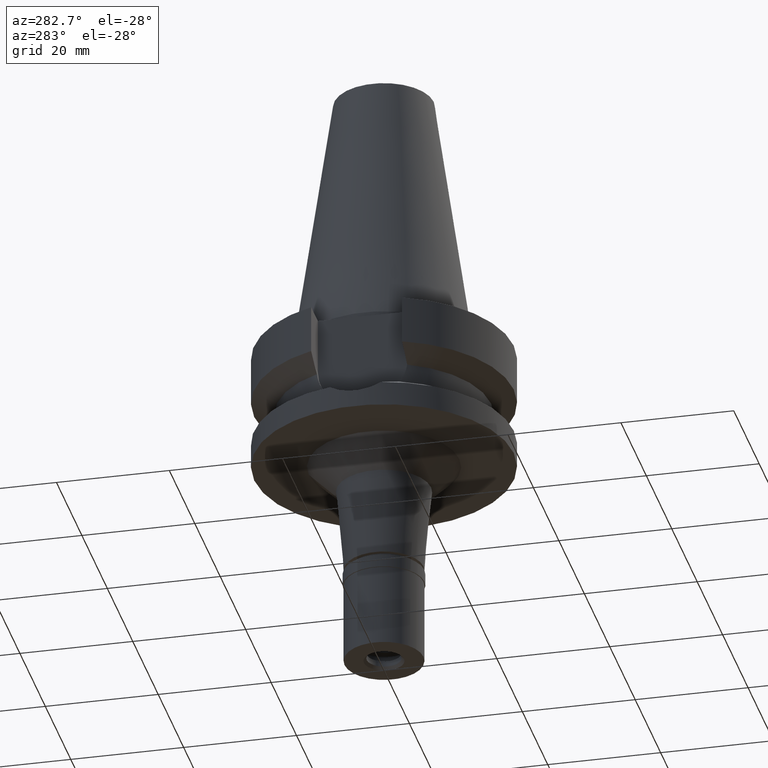
[diagram: clean part render]
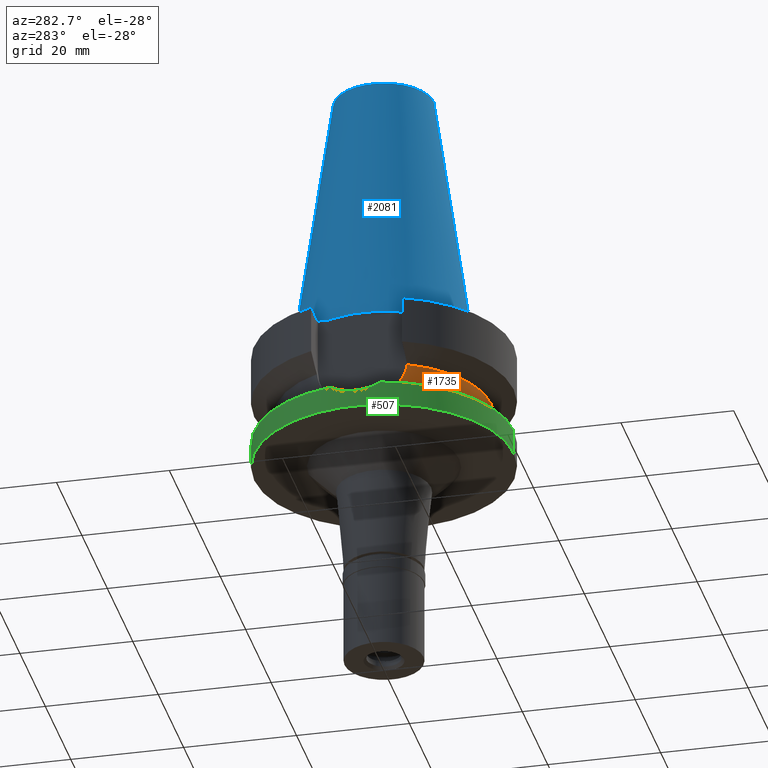
[diagram: same view with three faces highlighted in distinct colors, each labeled with its STEP entity id]
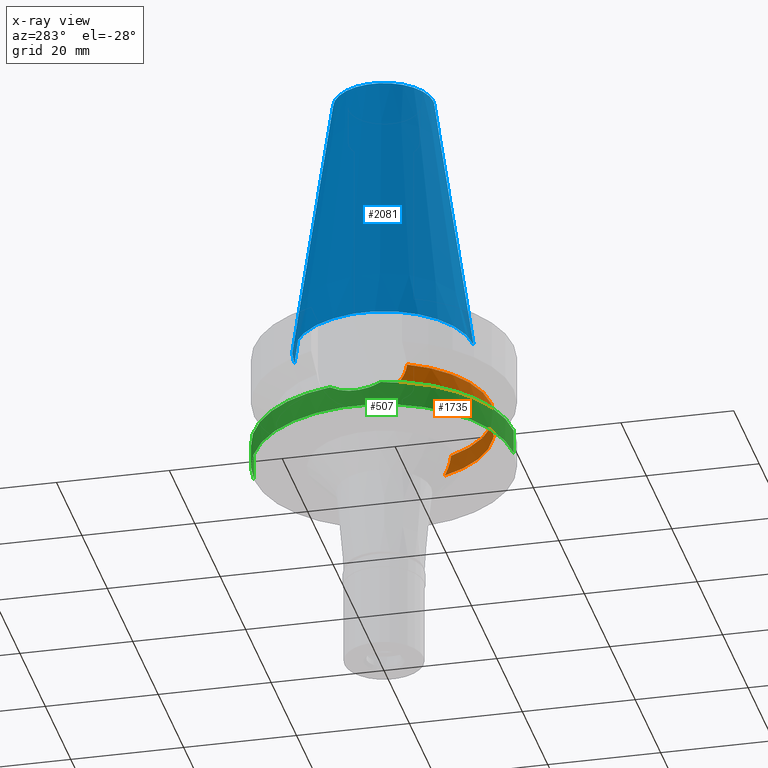
[diagram: x-ray of the same camera — body ghosted, the three highlighted faces saturated]
A machine part, auxiliary view with three faces highlighted in distinct colors.
The next image is the same camera in x-ray (body ghosted, the three faces saturated) — at least one of them is partly hidden behind the body in this view.
Their STEP definitions:

[orange] entity #1735 — the highlighted cylindrical surface (partial cylindrical patch) has radius 19 mm, axis along (0, 0, -1).
#86 = CARTESIAN_POINT ( 'NONE',  ( 17.32020187249955256, -7.811452264125294143, -12.90108126309827874 ) ) ;
#97 = CARTESIAN_POINT ( 'NONE',  ( 17.61322740984528323, -7.137115852225535129, -14.73814199246520396 ) ) ;
#113 = CARTESIAN_POINT ( 'NONE',  ( -17.45719485030821616, -7.500152504368278628, -13.87559139675905229 ) ) ;
#149 = CARTESIAN_POINT ( 'NONE',  ( -17.32791110613037233, -7.797407457914789397, -13.04850003617055876 ) ) ;
#301 = CARTESIAN_POINT ( 'NONE',  ( 0.0000000000000000000, 1.022848384030000006E-14, -15.32339055352999857 ) ) ;
#358 = ORIENTED_EDGE ( 'NONE', *, *, #1845, .T. ) ;
#400 = B_SPLINE_CURVE_WITH_KNOTS ( 'NONE', 3,
 ( #1255, #1239, #1941, #2853, #793, #2194, #113, #1719, #1033, #2871, #1740, #1503, #149, #1289, #1306 ),
 .UNSPECIFIED., .F., .F.,
 ( 4, 2, 2, 1, 1, 1, 2, 2, 4 ),
 ( 0.0000000000000000000, 0.2500000000000255906, 0.3750000000000384137, 0.4375000000000441314, 0.4687500000000467404, 0.4843750000000480727, 0.4921875000000485167, 0.5000000000000488498, 1.000000000000000000 ),
 .UNSPECIFIED. ) ;
#440 = CARTESIAN_POINT ( 'NONE',  ( -17.75736593456000278, -6.758398853743999624, -15.32339055352999857 ) ) ;
#538 = CARTESIAN_POINT ( 'NONE',  ( 17.75736593456000278, -6.758398853743999624, -15.32339055352999857 ) ) ;
#632 = EDGE_CURVE ( 'NONE', #827, #940, #1716, .T. ) ;
#775 = VERTEX_POINT ( 'NONE', #1087 ) ;
#778 = CARTESIAN_POINT ( 'NONE',  ( 17.27395772733963142, -7.913379800517086338, -12.45762674838754691 ) ) ;
#792 = CARTESIAN_POINT ( 'NONE',  ( 17.40050758145642718, -7.630565565486477020, -13.51508960620993882 ) ) ;
#793 = CARTESIAN_POINT ( 'NONE',  ( -17.51072787951258647, -7.374839633770184477, -14.18046796375015894 ) ) ;
#827 = VERTEX_POINT ( 'NONE', #1745 ) ;
#940 = VERTEX_POINT ( 'NONE', #2480 ) ;
#981 = AXIS2_PLACEMENT_3D ( 'NONE', #301, #1958, #2210 ) ;
#999 = CARTESIAN_POINT ( 'NONE',  ( 17.33753429471982344, -7.772924035376696850, -13.04956639087422232 ) ) ;
#1016 = CARTESIAN_POINT ( 'NONE',  ( 17.23531135313000107, -7.996501749111999402, -11.87660739354000050 ) ) ;
#1033 = CARTESIAN_POINT ( 'NONE',  ( -17.42911851123985301, -7.564954524495926869, -13.70217975917531561 ) ) ;
#1087 = CARTESIAN_POINT ( 'NONE',  ( 17.75736593456000278, -6.758398853743999624, -15.32339055352999857 ) ) ;
#1101 = DIRECTION ( 'NONE',  ( 0.0000000000000000000, -1.000000000000000000, 0.0000000000000000000 ) ) ;
#1211 = CARTESIAN_POINT ( 'NONE',  ( 0.0000000000000000000, 1.881302412850000052E-14, 53.62000000000000455 ) ) ;
#1239 = CARTESIAN_POINT ( 'NONE',  ( -17.68527465925047437, -6.947815190968204213, -15.03067689333788159 ) ) ;
#1255 = CARTESIAN_POINT ( 'NONE',  ( -17.75736593456000278, -6.758398853743999624, -15.32339055352999857 ) ) ;
#1268 = CARTESIAN_POINT ( 'NONE',  ( 17.36640948880069146, -7.707982828137934561, -13.27282317309930271 ) ) ;
#1289 = CARTESIAN_POINT ( 'NONE',  ( -17.26628505277651371, -7.929743581424994581, -12.45264543981650007 ) ) ;
#1296 = ORIENTED_EDGE ( 'NONE', *, *, #632, .T. ) ;
#1306 = CARTESIAN_POINT ( 'NONE',  ( -17.23531622822000386, -7.996491147957000223, -11.87660607717000083 ) ) ;
#1422 = ORIENTED_EDGE ( 'NONE', *, *, #1863, .F. ) ;
#1471 = CARTESIAN_POINT ( 'NONE',  ( 17.41740973184815644, -7.591861673416115508, -13.62698225825054799 ) ) ;
#1479 = VERTEX_POINT ( 'NONE', #440 ) ;
#1503 = CARTESIAN_POINT ( 'NONE',  ( -17.42163631456517336, -7.582155995879247712, -13.65434988440541098 ) ) ;
#1607 = AXIS2_PLACEMENT_3D ( 'NONE', #1211, #2152, #1101 ) ;
#1630 = B_SPLINE_CURVE_WITH_KNOTS ( 'NONE', 3,
 ( #1016, #2610, #778, #86, #999, #1268, #1928, #792, #2209, #2842, #1471, #1699, #1717, #97, #538 ),
 .UNSPECIFIED., .F., .F.,
 ( 4, 2, 2, 1, 1, 1, 2, 2, 4 ),
 ( 0.0000000000000000000, 0.2499999999999958922, 0.3749999999999936717, 0.4374999999999927836, 0.4687499999999922839, 0.4843749999999920064, 0.4921874999999920064, 0.4999999999999920064, 1.000000000000000000 ),
 .UNSPECIFIED. ) ;
#1637 = CARTESIAN_POINT ( 'NONE',  ( 0.0000000000000000000, 1.093341284896999988E-14, -11.87660944646999894 ) ) ;
#1699 = CARTESIAN_POINT ( 'NONE',  ( 17.41902886904345138, -7.588145056447753056, -13.63749496349907453 ) ) ;
#1716 = CIRCLE ( 'NONE', #2911, 19.00000000000000000 ) ;
#1717 = CARTESIAN_POINT ( 'NONE',  ( 17.50086807624851204, -7.400179108504425507, -14.16641331453757147 ) ) ;
#1719 = CARTESIAN_POINT ( 'NONE',  ( -17.43825996256373045, -7.543902337135691027, -13.75966030972775123 ) ) ;
#1724 = FACE_OUTER_BOUND ( 'NONE', #2284, .T. ) ;
#1735 = ADVANCED_FACE ( 'NONE', ( #1724 ), #1984, .T. ) ;
#1740 = CARTESIAN_POINT ( 'NONE',  ( -17.42272085251618208, -7.579664040962679650, -13.66132223661188050 ) ) ;
#1745 = CARTESIAN_POINT ( 'NONE',  ( 17.23531135313000107, -7.996501749111999402, -11.87660739354000050 ) ) ;
#1845 = EDGE_CURVE ( 'NONE', #1479, #775, #2292, .T. ) ;
#1863 = EDGE_CURVE ( 'NONE', #1479, #940, #400, .T. ) ;
#1928 = CARTESIAN_POINT ( 'NONE',  ( 17.38156622602872403, -7.673725376854040547, -13.38458314363614576 ) ) ;
#1941 = CARTESIAN_POINT ( 'NONE',  ( -17.62113139273918350, -7.108367418567802076, -14.74095000871269079 ) ) ;
#1958 = DIRECTION ( 'NONE',  ( 0.0000000000000000000, 0.0000000000000000000, 1.000000000000000000 ) ) ;
#1984 = CYLINDRICAL_SURFACE ( 'NONE', #1607, 19.00000000000000000 ) ;
#2152 = DIRECTION ( 'NONE',  ( 0.0000000000000000000, 0.0000000000000000000, -1.000000000000000000 ) ) ;
#2194 = CARTESIAN_POINT ( 'NONE',  ( -17.47454244282645419, -7.459747681763411187, -13.97656327318397373 ) ) ;
#2209 = CARTESIAN_POINT ( 'NONE',  ( 17.41029288300236288, -7.608179589561235190, -13.58035844461900865 ) ) ;
#2210 = DIRECTION ( 'NONE',  ( 0.0000000000000000000, -1.000000000000000000, 0.0000000000000000000 ) ) ;
#2253 = EDGE_CURVE ( 'NONE', #827, #775, #1630, .T. ) ;
#2284 = EDGE_LOOP ( 'NONE', ( #1422, #358, #2636, #1296 ) ) ;
#2292 = CIRCLE ( 'NONE', #981, 19.00000000000000000 ) ;
#2480 = CARTESIAN_POINT ( 'NONE',  ( -17.23531622822000386, -7.996491147957000223, -11.87660607717000083 ) ) ;
#2579 = DIRECTION ( 'NONE',  ( 0.0000000000000000000, 0.0000000000000000000, -1.000000000000000000 ) ) ;
#2610 = CARTESIAN_POINT ( 'NONE',  ( 17.25079912590087972, -7.963111191504665065, -12.16468723347666092 ) ) ;
#2636 = ORIENTED_EDGE ( 'NONE', *, *, #2253, .F. ) ;
#2785 = DIRECTION ( 'NONE',  ( 0.0000000000000000000, -1.000000000000000000, 0.0000000000000000000 ) ) ;
#2842 = CARTESIAN_POINT ( 'NONE',  ( 17.41455400305749990, -7.598412036632487876, -13.60833259785740879 ) ) ;
#2853 = CARTESIAN_POINT ( 'NONE',  ( -17.53683850616956974, -7.312769253788782287, -14.31902481028560814 ) ) ;
#2871 = CARTESIAN_POINT ( 'NONE',  ( -17.42527060193284427, -7.573803216175218012, -13.67765102006518774 ) ) ;
#2911 = AXIS2_PLACEMENT_3D ( 'NONE', #1637, #2579, #2785 ) ;

[blue] entity #2081 — the highlighted conical surface has half-angle 8.297 deg.
#198 = LINE ( 'NONE', #898, #2801 ) ;
#299 = CARTESIAN_POINT ( 'NONE',  ( 0.0000000000000000000, 8.816791732783000768, 48.39999999999999858 ) ) ;
#318 = CARTESIAN_POINT ( 'NONE',  ( 0.0000000000000000000, -15.87500000000000000, -1.598721155459999993E-13 ) ) ;
#341 = AXIS2_PLACEMENT_3D ( 'NONE', #2330, #466, #1390 ) ;
#342 = VERTEX_POINT ( 'NONE', #1931 ) ;
#466 = DIRECTION ( 'NONE',  ( 0.0000000000000000000, 0.0000000000000000000, -1.000000000000000000 ) ) ;
#594 = AXIS2_PLACEMENT_3D ( 'NONE', #2199, #2877, #2435 ) ;
#703 = EDGE_CURVE ( 'NONE', #819, #342, #1864, .T. ) ;
#734 = ORIENTED_EDGE ( 'NONE', *, *, #2814, .F. ) ;
#771 = ORIENTED_EDGE ( 'NONE', *, *, #1994, .F. ) ;
#819 = VERTEX_POINT ( 'NONE', #1044 ) ;
#898 = CARTESIAN_POINT ( 'NONE',  ( 0.0000000000000000000, -8.816791732783000768, 48.39999999999999858 ) ) ;
#1020 = CONICAL_SURFACE ( 'NONE', #341, 12.34589586639000025, 0.1448099680379422438 ) ;
#1044 = CARTESIAN_POINT ( 'NONE',  ( 0.0000000000000000000, -8.816791732783000768, 48.39999999999999858 ) ) ;
#1152 = FACE_OUTER_BOUND ( 'NONE', #1768, .T. ) ;
#1167 = VERTEX_POINT ( 'NONE', #1750 ) ;
#1193 = DIRECTION ( 'NONE',  ( 0.0000000000000000000, 0.1443043893539925626, -0.9895333461855498891 ) ) ;
#1266 = ORIENTED_EDGE ( 'NONE', *, *, #2018, .T. ) ;
#1343 = DIRECTION ( 'NONE',  ( 0.0000000000000000000, 0.0000000000000000000, -1.000000000000000000 ) ) ;
#1384 = DIRECTION ( 'NONE',  ( 0.0000000000000000000, -1.000000000000000000, 0.0000000000000000000 ) ) ;
#1390 = DIRECTION ( 'NONE',  ( 0.0000000000000000000, -1.000000000000000000, 0.0000000000000000000 ) ) ;
#1750 = CARTESIAN_POINT ( 'NONE',  ( 0.0000000000000000000, 15.87500000000000000, -1.598721155459999993E-13 ) ) ;
#1768 = EDGE_LOOP ( 'NONE', ( #734, #771, #2600, #1266 ) ) ;
#1853 = VERTEX_POINT ( 'NONE', #318 ) ;
#1864 = CIRCLE ( 'NONE', #594, 8.816791732783000768 ) ;
#1931 = CARTESIAN_POINT ( 'NONE',  ( 0.0000000000000000000, 8.816791732783000768, 48.39999999999999858 ) ) ;
#1937 = VECTOR ( 'NONE', #1193, 1000.000000000000114 ) ;
#1994 = EDGE_CURVE ( 'NONE', #819, #1853, #198, .T. ) ;
#2018 = EDGE_CURVE ( 'NONE', #342, #1167, #2373, .T. ) ;
#2079 = DIRECTION ( 'NONE',  ( 0.0000000000000000000, -0.1443043893539925626, -0.9895333461855498891 ) ) ;
#2081 = ADVANCED_FACE ( 'NONE', ( #1152 ), #1020, .T. ) ;
#2171 = AXIS2_PLACEMENT_3D ( 'NONE', #2274, #1343, #1384 ) ;
#2199 = CARTESIAN_POINT ( 'NONE',  ( 0.0000000000000000000, 1.521011324540999938E-14, 48.39999999999999858 ) ) ;
#2274 = CARTESIAN_POINT ( 'NONE',  ( 0.0000000000000000000, 1.521011324540999938E-14, -3.694822225953000089E-13 ) ) ;
#2330 = CARTESIAN_POINT ( 'NONE',  ( 0.0000000000000000000, 1.521011324540999938E-14, 24.19999999999999929 ) ) ;
#2373 = LINE ( 'NONE', #299, #1937 ) ;
#2435 = DIRECTION ( 'NONE',  ( 0.0000000000000000000, -1.000000000000000000, 0.0000000000000000000 ) ) ;
#2600 = ORIENTED_EDGE ( 'NONE', *, *, #703, .T. ) ;
#2801 = VECTOR ( 'NONE', #2079, 1000.000000000000114 ) ;
#2814 = EDGE_CURVE ( 'NONE', #1853, #1167, #2825, .T. ) ;
#2825 = CIRCLE ( 'NONE', #2171, 15.87500000000000000 ) ;
#2877 = DIRECTION ( 'NONE',  ( 0.0000000000000000000, 0.0000000000000000000, -1.000000000000000000 ) ) ;

[green] entity #507 — the highlighted cylindrical surface (partial cylindrical patch) has radius 23 mm, axis along (0, 0, -1).
#100 = EDGE_CURVE ( 'NONE', #922, #2237, #2385, .T. ) ;
#103 = ORIENTED_EDGE ( 'NONE', *, *, #2768, .T. ) ;
#114 = CARTESIAN_POINT ( 'NONE',  ( -22.99958106116201506, -0.4076252345886244854, -18.99876958054451848 ) ) ;
#116 = AXIS2_PLACEMENT_3D ( 'NONE', #2440, #2240, #2639 ) ;
#154 = CARTESIAN_POINT ( 'NONE',  ( -22.69605003539111721, 3.742246043853503679, -18.08863916510864200 ) ) ;
#245 = LINE ( 'NONE', #716, #2690 ) ;
#289 = VERTEX_POINT ( 'NONE', #978 ) ;
#302 = CARTESIAN_POINT ( 'NONE',  ( -22.89669828391553708, -2.179393510332613193, -18.69965599748531915 ) ) ;
#406 = ORIENTED_EDGE ( 'NONE', *, *, #100, .T. ) ;
#459 = CARTESIAN_POINT ( 'NONE',  ( 0.0000000000000000000, 23.00000000000000000, -17.63279163029000074 ) ) ;
#473 = CARTESIAN_POINT ( 'NONE',  ( -22.95216769459107198, 1.531412477254726623, -18.86284795593726216 ) ) ;
#507 = ADVANCED_FACE ( 'NONE', ( #2661 ), #2446, .T. ) ;
#512 = CARTESIAN_POINT ( 'NONE',  ( -22.81090950432876241, -3.020660139733617466, -18.44495556377373191 ) ) ;
#525 = CARTESIAN_POINT ( 'NONE',  ( -22.88222545004057906, -2.325754591110686054, -18.65674056899095135 ) ) ;
#531 = DIRECTION ( 'NONE',  ( 0.0000000000000000000, 0.0000000000000000000, 1.000000000000000000 ) ) ;
#540 = DIRECTION ( 'NONE',  ( 0.0000000000000000000, -1.000000000000000000, 0.0000000000000000000 ) ) ;
#568 = CARTESIAN_POINT ( 'NONE',  ( -22.88481372749445342, -2.300171923785075734, -18.66442433885200103 ) ) ;
#617 = CARTESIAN_POINT ( 'NONE',  ( 0.0000000000000000000, -23.00000000000000000, -22.00000000000000000 ) ) ;
#625 = ORIENTED_EDGE ( 'NONE', *, *, #1432, .T. ) ;
#642 = CARTESIAN_POINT ( 'NONE',  ( -22.86794343888607628, 2.462635580219702192, -18.61430130014867146 ) ) ;
#668 = LINE ( 'NONE', #882, #1219 ) ;
#716 = CARTESIAN_POINT ( 'NONE',  ( 0.0000000000000000000, -23.00000000000000000, -17.63279163029000074 ) ) ;
#765 = CIRCLE ( 'NONE', #1585, 23.00000000000000000 ) ;
#794 = CARTESIAN_POINT ( 'NONE',  ( -22.92452651903381877, -1.864440089677216195, -18.78174785949467918 ) ) ;
#815 = CARTESIAN_POINT ( 'NONE',  ( -23.00039156857204148, 0.3574856676471701022, -19.00115234547198639 ) ) ;
#816 = CARTESIAN_POINT ( 'NONE',  ( 0.0000000000000000000, 1.881302412850000052E-14, 53.62000000000000455 ) ) ;
#854 = CARTESIAN_POINT ( 'NONE',  ( -22.88130279756130392, 2.334968719027199935, -18.65396397036791853 ) ) ;
#882 = CARTESIAN_POINT ( 'NONE',  ( 0.0000000000000000000, 23.00000000000000000, -17.63279163029000074 ) ) ;
#922 = VERTEX_POINT ( 'NONE', #1944 ) ;
#927 = DIRECTION ( 'NONE',  ( 0.0000000000000000000, -2.603192430893000129E-14, -1.000000000000000000 ) ) ;
#978 = CARTESIAN_POINT ( 'NONE',  ( 0.0000000000000000000, 23.00000000000000000, -22.00000000000000000 ) ) ;
#1002 = CARTESIAN_POINT ( 'NONE',  ( -22.94689091153290050, -1.573058889710351904, -18.84731797892701266 ) ) ;
#1034 = CARTESIAN_POINT ( 'NONE',  ( -22.91242513727510755, -2.010000392866369445, -18.74615227865814759 ) ) ;
#1073 = CARTESIAN_POINT ( 'NONE',  ( -22.77748393016982220, 3.194066890172995610, -18.34195206604390194 ) ) ;
#1084 = CARTESIAN_POINT ( 'NONE',  ( -22.55786346208000026, 4.488072640470000430, -17.63279163029000074 ) ) ;
#1207 = CARTESIAN_POINT ( 'NONE',  ( -22.70350920476323964, -3.756030839835060142, -18.12442102094972185 ) ) ;
#1219 = VECTOR ( 'NONE', #927, 1000.000000000000000 ) ;
#1223 = CARTESIAN_POINT ( 'NONE',  ( -22.88961350933834993, -2.251877145769033195, -18.67865985014247698 ) ) ;
#1258 = EDGE_CURVE ( 'NONE', #922, #2467, #245, .T. ) ;
#1432 = EDGE_CURVE ( 'NONE', #2899, #289, #668, .T. ) ;
#1445 = CARTESIAN_POINT ( 'NONE',  ( -22.99091311577705810, 0.7497282920703489673, -18.97473017847586263 ) ) ;
#1496 = ORIENTED_EDGE ( 'NONE', *, *, #1258, .F. ) ;
#1584 = DIRECTION ( 'NONE',  ( -0.9807766722643714852, 0.1951335930638943839, 0.0000000000000000000 ) ) ;
#1585 = AXIS2_PLACEMENT_3D ( 'NONE', #1684, #531, #2401 ) ;
#1589 = EDGE_CURVE ( 'NONE', #1605, #2237, #2466, .T. ) ;
#1605 = VERTEX_POINT ( 'NONE', #2167 ) ;
#1647 = ORIENTED_EDGE ( 'NONE', *, *, #2414, .T. ) ;
#1684 = CARTESIAN_POINT ( 'NONE',  ( 0.0000000000000000000, 1.881302412850000052E-14, -22.00000000000000000 ) ) ;
#1773 = CARTESIAN_POINT ( 'NONE',  ( -22.92290420593992550, 1.923070217223366685, -18.77739314737642928 ) ) ;
#1800 = CARTESIAN_POINT ( 'NONE',  ( -22.63189142322548264, 4.115994741208836238, -17.88267412433994608 ) ) ;
#1813 = CIRCLE ( 'NONE', #2251, 23.00000000000001066 ) ;
#1818 = CARTESIAN_POINT ( 'NONE',  ( -22.83547616017225224, 2.746788174165855967, -18.51747442362376361 ) ) ;
#1903 = CARTESIAN_POINT ( 'NONE',  ( -22.95934934517446990, -1.378459520448282349, -18.88353401140011556 ) ) ;
#1944 = CARTESIAN_POINT ( 'NONE',  ( 0.0000000000000000000, -23.00000000000000000, -17.63279163029000074 ) ) ;
#1987 = EDGE_LOOP ( 'NONE', ( #103, #625, #1647, #1496, #406, #2244 ) ) ;
#2002 = CARTESIAN_POINT ( 'NONE',  ( -22.87476863916604231, 2.398004321994863464, -18.63456771832857939 ) ) ;
#2148 = CARTESIAN_POINT ( 'NONE',  ( -22.55786346208000026, -4.488072640470000430, -17.63279163029000074 ) ) ;
#2149 = DIRECTION ( 'NONE',  ( 0.0000000000000000000, 0.0000000000000000000, -1.000000000000000000 ) ) ;
#2167 = CARTESIAN_POINT ( 'NONE',  ( -22.55786346208000026, 4.488072640470000430, -17.63279163029000074 ) ) ;
#2237 = VERTEX_POINT ( 'NONE', #2632 ) ;
#2240 = DIRECTION ( 'NONE',  ( 0.0000000000000000000, 0.0000000000000000000, -1.000000000000000000 ) ) ;
#2244 = ORIENTED_EDGE ( 'NONE', *, *, #1589, .F. ) ;
#2251 = AXIS2_PLACEMENT_3D ( 'NONE', #2829, #2971, #1584 ) ;
#2385 = CIRCLE ( 'NONE', #116, 23.00000000000000000 ) ;
#2401 = DIRECTION ( 'NONE',  ( 0.0000000000000000000, 1.000000000000000000, 0.0000000000000000000 ) ) ;
#2414 = EDGE_CURVE ( 'NONE', #289, #2467, #765, .T. ) ;
#2440 = CARTESIAN_POINT ( 'NONE',  ( 0.0000000000000000000, 1.022848384030000006E-14, -17.63279163029000074 ) ) ;
#2446 = CYLINDRICAL_SURFACE ( 'NONE', #2857, 23.00000000000000000 ) ;
#2466 = B_SPLINE_CURVE_WITH_KNOTS ( 'NONE', 3,
 ( #1084, #1800, #154, #1073, #2706, #1818, #2513, #642, #2002, #2904, #854, #1773, #473, #1445, #815, #114, #2854, #1903, #1002, #794, #1034, #302, #1223, #568, #525, #512, #1207, #2148 ),
 .UNSPECIFIED., .F., .F.,
 ( 4, 2, 2, 1, 1, 2, 2, 2, 2, 2, 2, 1, 1, 2, 2, 4 ),
 ( 0.0000000000000000000, 0.1250000000000041078, 0.1875000000000061617, 0.2187500000000072442, 0.2343750000000077438, 0.2421875000000077438, 0.2500000000000077161, 0.3750000000000058842, 0.5000000000000039968, 0.6250000000000022204, 0.6875000000000012212, 0.7187500000000009992, 0.7343750000000007772, 0.7421875000000007772, 0.7500000000000006661, 1.000000000000000000 ),
 .UNSPECIFIED. ) ;
#2467 = VERTEX_POINT ( 'NONE', #617 ) ;
#2513 = CARTESIAN_POINT ( 'NONE',  ( -22.85120837653262882, 2.614614927543525091, -18.56452983984691940 ) ) ;
#2632 = CARTESIAN_POINT ( 'NONE',  ( -22.55786346208000026, -4.488072640470000430, -17.63279163029000074 ) ) ;
#2639 = DIRECTION ( 'NONE',  ( 0.0000000000000000000, -1.000000000000000000, 0.0000000000000000000 ) ) ;
#2661 = FACE_OUTER_BOUND ( 'NONE', #1987, .T. ) ;
#2690 = VECTOR ( 'NONE', #2967, 1000.000000000000000 ) ;
#2706 = CARTESIAN_POINT ( 'NONE',  ( -22.80216122451776783, 3.013364605578610966, -18.41714078195897031 ) ) ;
#2768 = EDGE_CURVE ( 'NONE', #1605, #2899, #1813, .T. ) ;
#2829 = CARTESIAN_POINT ( 'NONE',  ( 0.0000000000000000000, 1.022848384030000006E-14, -17.63279163029000074 ) ) ;
#2854 = CARTESIAN_POINT ( 'NONE',  ( -22.98937116202574416, -0.7953693437727543669, -18.97024549781451341 ) ) ;
#2857 = AXIS2_PLACEMENT_3D ( 'NONE', #816, #2149, #540 ) ;
#2899 = VERTEX_POINT ( 'NONE', #459 ) ;
#2904 = CARTESIAN_POINT ( 'NONE',  ( -22.87924166839712470, 2.355031409872806680, -18.64784598471522159 ) ) ;
#2967 = DIRECTION ( 'NONE',  ( 0.0000000000000000000, 2.277793377031000010E-14, -1.000000000000000000 ) ) ;
#2971 = DIRECTION ( 'NONE',  ( 0.0000000000000000000, 0.0000000000000000000, -1.000000000000000000 ) ) ;